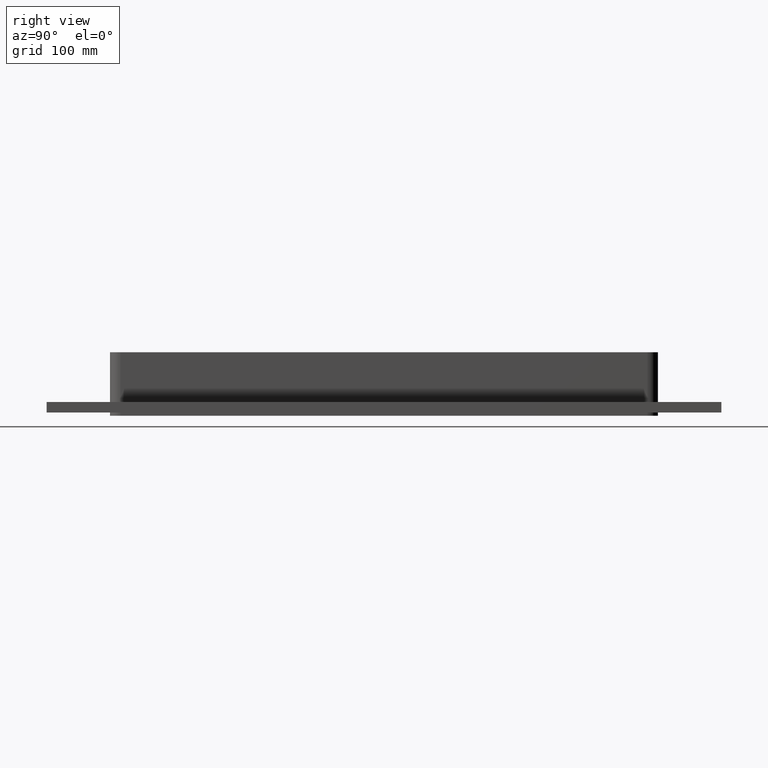
[diagram: clean part render]
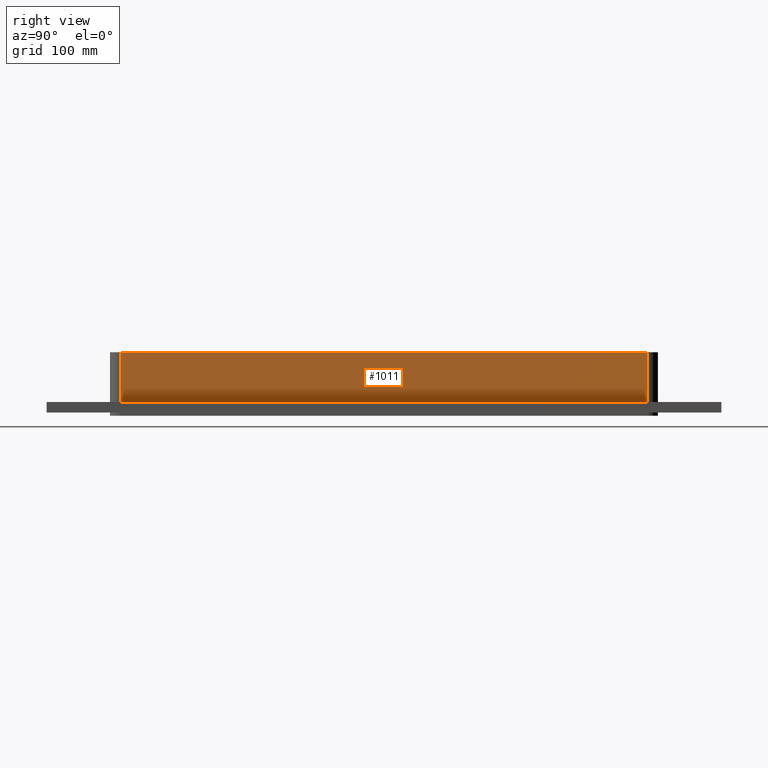
[diagram: same view with one face highlighted and labeled with its STEP entity id]
A machine part, right view. The second image highlights one B-rep face of the part: STEP entity #1011.
In plain terms, the highlighted planar face has unit normal (1, 0, 0).
Its self-contained STEP definition (entity closure, byte-faithful):
#699=CARTESIAN_POINT('',(70.249999999999915,249.25,-17.0));
#700=VERTEX_POINT('',#699);
#710=CARTESIAN_POINT('',(70.249999999999986,-249.25000000000006,-17.0));
#711=VERTEX_POINT('',#710);
#712=CARTESIAN_POINT('',(70.249999999999986,-249.25000000000006,-16.999999999999996));
#713=DIRECTION('',(0.0,1.0,0.0));
#714=VECTOR('',#713,498.50000000000006);
#715=LINE('',#712,#714);
#716=EDGE_CURVE('',#711,#700,#715,.T.);
#938=CARTESIAN_POINT('',(70.249999999999986,-249.24999999999989,30.0));
#939=VERTEX_POINT('',#938);
#940=CARTESIAN_POINT('',(70.249999999999986,-249.24999999999989,-17.0));
#941=DIRECTION('',(0.0,0.0,1.0));
#942=VECTOR('',#941,47.0);
#943=LINE('',#940,#942);
#944=EDGE_CURVE('',#711,#939,#943,.T.);
#988=CARTESIAN_POINT('',(70.249999999999986,-259.24999999999989,0.0));
#989=DIRECTION('',(1.0,0.0,0.0));
#990=DIRECTION('',(0.0,1.0,0.0));
#991=AXIS2_PLACEMENT_3D('',#988,#989,#990);
#992=PLANE('',#991);
#993=ORIENTED_EDGE('',*,*,#716,.T.);
#994=CARTESIAN_POINT('',(70.249999999999915,249.25000000000011,30.0));
#995=VERTEX_POINT('',#994);
#996=CARTESIAN_POINT('',(70.249999999999915,249.25000000000011,30.0));
#997=DIRECTION('',(0.0,0.0,-1.0));
#998=VECTOR('',#997,47.0);
#999=LINE('',#996,#998);
#1000=EDGE_CURVE('',#995,#700,#999,.T.);
#1001=ORIENTED_EDGE('',*,*,#1000,.F.);
#1002=CARTESIAN_POINT('',(70.249999999999986,-249.24999999999989,30.0));
#1003=DIRECTION('',(0.0,1.0,0.0));
#1004=VECTOR('',#1003,498.5);
#1005=LINE('',#1002,#1004);
#1006=EDGE_CURVE('',#939,#995,#1005,.T.);
#1007=ORIENTED_EDGE('',*,*,#1006,.F.);
#1008=ORIENTED_EDGE('',*,*,#944,.F.);
#1009=EDGE_LOOP('',(#993,#1001,#1007,#1008));
#1010=FACE_OUTER_BOUND('',#1009,.T.);
#1011=ADVANCED_FACE('',(#1010),#992,.T.);